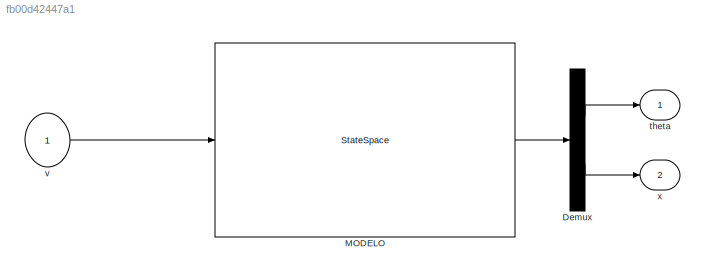
MODEL slx_fb00d42447a1
KIND model
CONFIG AbsTol = auto
CONFIG EnableMultiTasking = off
CONFIG FixedStep = 0.0005
CONFIG MaxStep = auto
CONFIG MinStep = auto
CONFIG RelTol = 1e-6
CONFIG SampleTimeConstraint = Unconstrained
CONFIG Solver = ode45
CONFIG SolverName = ode45
CONFIG StartTime = 0.0
CONFIG StopTime = 10
BLOCK [Demux] Demux
  DisplayOption = bar
  Outputs = 2
  Ports = [1, 2]
BLOCK [StateSpace] MODELO
  A = MODEL.A
  B = MODEL.B
  C = MODEL.C
  D = MODEL.D
  InitialCondition = 0
  Ports = [1, 1]
BLOCK [Outport] theta
  IconDisplay = Port number
BLOCK [Inport] v
  IconDisplay = Port number
BLOCK [Outport] x
  IconDisplay = Port number
  Port = 2
LINE Demux:1 -> theta:1
LINE Demux:2 -> x:1
LINE MODELO:1 -> Demux:1
LINE v:1 -> MODELO:1
